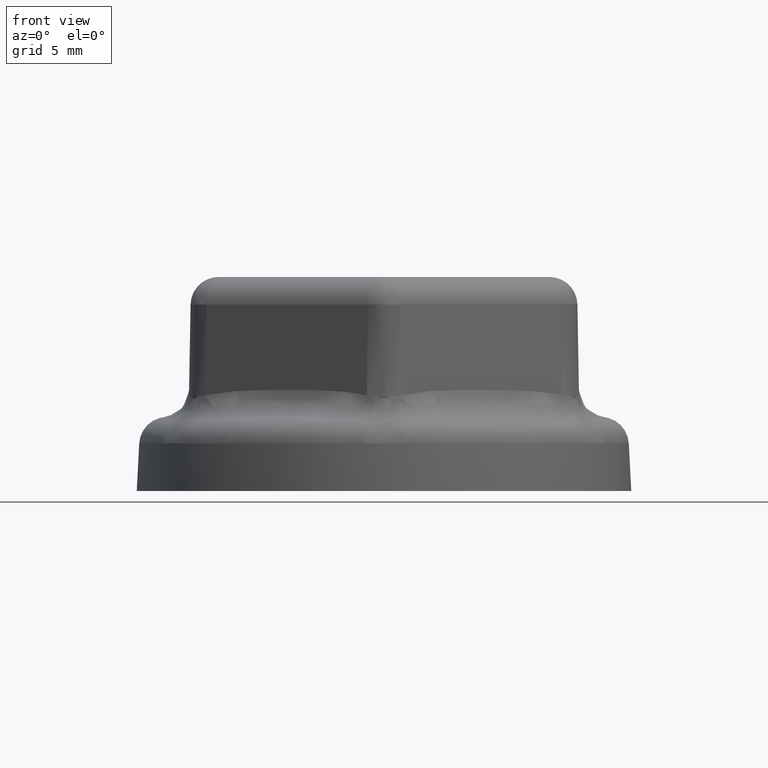
[diagram: clean part render]
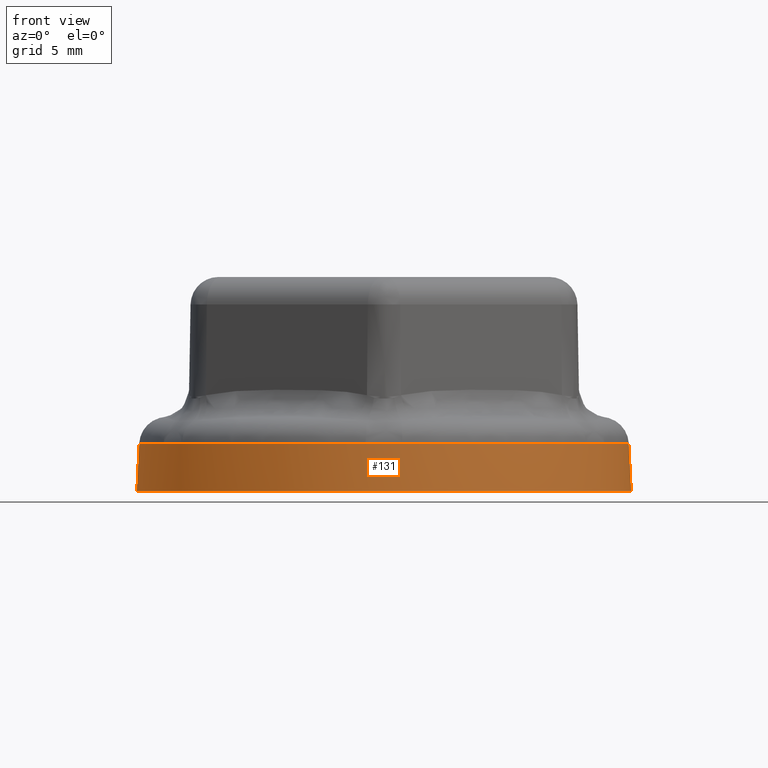
[diagram: same view with one face highlighted and labeled with its STEP entity id]
A machine part, front view. The second image highlights one B-rep face of the part: STEP entity #131.
In plain terms, the highlighted conical surface has half-angle 3 deg.
Its self-contained STEP definition (entity closure, byte-faithful):
#131 = ADVANCED_FACE( '', ( #296, #297 ), #298, .T. );
#296 = FACE_BOUND( '', #2257, .T. );
#297 = FACE_OUTER_BOUND( '', #2258, .T. );
#298 = CONICAL_SURFACE( '', #2259, 17.6729456716340, 0.0523598775598299 );
#2257 = EDGE_LOOP( '', ( #4956, #4957, #4958, #4959, #4960, #4961, #4962, #4963, #4964, #4965, #4966, #4967 ) );
#2258 = EDGE_LOOP( '', ( #4968 ) );
#2259 = AXIS2_PLACEMENT_3D( '', #4969, #4970, #4971 );
#4956 = ORIENTED_EDGE( '', *, *, #5410, .T. );
#4957 = ORIENTED_EDGE( '', *, *, #5414, .T. );
#4958 = ORIENTED_EDGE( '', *, *, #5415, .T. );
#4959 = ORIENTED_EDGE( '', *, *, #5416, .T. );
#4960 = ORIENTED_EDGE( '', *, *, #5417, .T. );
#4961 = ORIENTED_EDGE( '', *, *, #5418, .T. );
#4962 = ORIENTED_EDGE( '', *, *, #5419, .T. );
#4963 = ORIENTED_EDGE( '', *, *, #5420, .T. );
#4964 = ORIENTED_EDGE( '', *, *, #5421, .T. );
#4965 = ORIENTED_EDGE( '', *, *, #5422, .T. );
#4966 = ORIENTED_EDGE( '', *, *, #5406, .T. );
#4967 = ORIENTED_EDGE( '', *, *, #5412, .T. );
#4968 = ORIENTED_EDGE( '', *, *, #5423, .T. );
#4969 = CARTESIAN_POINT( '', ( 0.000000000000000, 0.000000000000000, 0.000000000000000 ) );
#4970 = DIRECTION( '', ( 0.000000000000000, 0.000000000000000, -1.00000000000000 ) );
#4971 = DIRECTION( '', ( 1.00000000000000, 0.000000000000000, 0.000000000000000 ) );
#5406 = EDGE_CURVE( '', #5751, #5749, #5752, .T. );
#5410 = EDGE_CURVE( '', #5757, #5755, #5758, .T. );
#5412 = EDGE_CURVE( '', #5749, #5757, #5760, .T. );
#5414 = EDGE_CURVE( '', #5755, #5761, #5763, .T. );
#5415 = EDGE_CURVE( '', #5761, #5764, #5765, .T. );
#5416 = EDGE_CURVE( '', #5764, #5766, #5767, .T. );
#5417 = EDGE_CURVE( '', #5766, #5768, #5769, .T. );
#5418 = EDGE_CURVE( '', #5768, #5770, #5771, .T. );
#5419 = EDGE_CURVE( '', #5770, #5772, #5773, .T. );
#5420 = EDGE_CURVE( '', #5772, #5774, #5775, .T. );
#5421 = EDGE_CURVE( '', #5774, #5776, #5777, .T. );
#5422 = EDGE_CURVE( '', #5776, #5751, #5778, .T. );
#5423 = EDGE_CURVE( '', #5779, #5779, #5780, .T. );
#5749 = VERTEX_POINT( '', #6880 );
#5751 = VERTEX_POINT( '', #6882 );
#5752 = CIRCLE( '', #6883, 17.4945143775133 );
#5755 = VERTEX_POINT( '', #6921 );
#5757 = VERTEX_POINT( '', #6923 );
#5758 = CIRCLE( '', #6924, 17.4945143775133 );
#5760 = B_SPLINE_CURVE_WITH_KNOTS( '', 3, ( #6926, #6927, #6928, #6929, #6930, #6931, #6932, #6933, #6934, #6935, #6936, #6937, #6938, #6939, #6940, #6941, #6942 ), .UNSPECIFIED., .F., .F., ( 4, 2, 2, 2, 1, 2, 2, 2, 4 ), ( 0.000000000000000, 0.000327581224059132, 0.000655162448118264, 0.000982743672177396, 0.00131032489623653, 0.00163790612029566, 0.00196548734435479, 0.00229306856841392, 0.00262064979247306 ), .UNSPECIFIED. );
#5761 = VERTEX_POINT( '', #6943 );
#5763 = B_SPLINE_CURVE_WITH_KNOTS( '', 3, ( #6945, #6946, #6947, #6948, #6949, #6950, #6951, #6952, #6953, #6954, #6955, #6956, #6957, #6958, #6959, #6960, #6961 ), .UNSPECIFIED., .F., .F., ( 4, 2, 2, 2, 1, 2, 2, 2, 4 ), ( 0.000000000000000, 0.000327581224059172, 0.000655162448118343, 0.000982743672177515, 0.00131032489623669, 0.00163790612029586, 0.00196548734435503, 0.00229306856841420, 0.00262064979247338 ), .UNSPECIFIED. );
#5764 = VERTEX_POINT( '', #6962 );
#5765 = CIRCLE( '', #6963, 17.4945143775133 );
#5766 = VERTEX_POINT( '', #6964 );
#5767 = B_SPLINE_CURVE_WITH_KNOTS( '', 3, ( #6965, #6966, #6967, #6968, #6969, #6970, #6971, #6972, #6973, #6974, #6975, #6976, #6977, #6978, #6979, #6980, #6981 ), .UNSPECIFIED., .F., .F., ( 4, 2, 2, 2, 1, 2, 2, 2, 4 ), ( 0.000000000000000, 0.000327581224059232, 0.000655162448118462, 0.000982743672177691, 0.00131032489623692, 0.00163790612029615, 0.00196548734435538, 0.00229306856841461, 0.00262064979247384 ), .UNSPECIFIED. );
#5768 = VERTEX_POINT( '', #6982 );
#5769 = CIRCLE( '', #6983, 17.4945143775133 );
#5770 = VERTEX_POINT( '', #6984 );
#5771 = B_SPLINE_CURVE_WITH_KNOTS( '', 3, ( #6985, #6986, #6987, #6988, #6989, #6990, #6991, #6992, #6993, #6994, #6995, #6996, #6997, #6998, #6999, #7000, #7001 ), .UNSPECIFIED., .F., .F., ( 4, 2, 2, 2, 1, 2, 2, 2, 4 ), ( 0.000000000000000, 0.000327581224059151, 0.000655162448118302, 0.000982743672177454, 0.00131032489623660, 0.00163790612029576, 0.00196548734435491, 0.00229306856841406, 0.00262064979247321 ), .UNSPECIFIED. );
#5772 = VERTEX_POINT( '', #7002 );
#5773 = CIRCLE( '', #7003, 17.4945143775133 );
#5774 = VERTEX_POINT( '', #7004 );
#5775 = B_SPLINE_CURVE_WITH_KNOTS( '', 3, ( #7005, #7006, #7007, #7008, #7009, #7010, #7011, #7012, #7013, #7014, #7015, #7016, #7017, #7018, #7019, #7020, #7021 ), .UNSPECIFIED., .F., .F., ( 4, 2, 2, 2, 1, 2, 2, 2, 4 ), ( 0.000000000000000, 0.000327581224059315, 0.000655162448118630, 0.000982743672177945, 0.00131032489623726, 0.00163790612029658, 0.00196548734435589, 0.00229306856841521, 0.00262064979247452 ), .UNSPECIFIED. );
#5776 = VERTEX_POINT( '', #7022 );
#5777 = CIRCLE( '', #7023, 17.4945143775133 );
#5778 = B_SPLINE_CURVE_WITH_KNOTS( '', 3, ( #7024, #7025, #7026, #7027, #7028, #7029, #7030, #7031, #7032, #7033, #7034, #7035, #7036, #7037, #7038, #7039, #7040 ), .UNSPECIFIED., .F., .F., ( 4, 2, 2, 2, 1, 2, 2, 2, 4 ), ( 0.000000000000000, 0.000327581224059208, 0.000655162448118414, 0.000982743672177619, 0.00131032489623682, 0.00163790612029603, 0.00196548734435524, 0.00229306856841444, 0.00262064979247365 ), .UNSPECIFIED. );
#5779 = VERTEX_POINT( '', #7041 );
#5780 = CIRCLE( '', #7042, 17.6729456716340 );
#6880 = CARTESIAN_POINT( '', ( -1.31032489623613, 17.4453742284688, 3.40467191248589 ) );
#6882 = CARTESIAN_POINT( '', ( -14.4529748122622, 9.85746176158626, 3.40467191248589 ) );
#6883 = AXIS2_PLACEMENT_3D( '', #8139, #8140, #8141 );
#6921 = CARTESIAN_POINT( '', ( 14.4529748122623, 9.85746176158604, 3.40467191248589 ) );
#6923 = CARTESIAN_POINT( '', ( 1.31032489623693, 17.4453742284687, 3.40467191248589 ) );
#6924 = AXIS2_PLACEMENT_3D( '', #8148, #8149, #8150 );
#6926 = CARTESIAN_POINT( '', ( -1.31032489623613, 17.4453742284688, 3.40467191248589 ) );
#6927 = CARTESIAN_POINT( '', ( -1.20113115488308, 17.4535757881450, 3.40467191248589 ) );
#6928 = CARTESIAN_POINT( '', ( -1.09193741353004, 17.4606866130747, 3.40581113302189 ) );
#6929 = CARTESIAN_POINT( '', ( -0.873549930823948, 17.4728069921034, 3.40899088238006 ) );
#6930 = CARTESIAN_POINT( '', ( -0.764356189470905, 17.4778168271504, 3.41102584739353 ) );
#6931 = CARTESIAN_POINT( '', ( -0.545968706764816, 17.4858022877583, 3.41482043468377 ) );
#6932 = CARTESIAN_POINT( '', ( -0.436774965411772, 17.4887781823218, 3.41657475362219 ) );
#6933 = CARTESIAN_POINT( '', ( -0.218387482705684, 17.4927406323438, 3.41901077912954 ) );
#6934 = CARTESIAN_POINT( '', ( 4.03838204196538E-013, 17.4947140622316, 3.42036790846527 ) );
#6935 = CARTESIAN_POINT( '', ( 0.218387482706492, 17.4927406323438, 3.41901077912960 ) );
#6936 = CARTESIAN_POINT( '', ( 0.436774965412580, 17.4887781823218, 3.41657475362227 ) );
#6937 = CARTESIAN_POINT( '', ( 0.545968706765624, 17.4858022877583, 3.41482043468386 ) );
#6938 = CARTESIAN_POINT( '', ( 0.764356189471712, 17.4778168271504, 3.41102584739360 ) );
#6939 = CARTESIAN_POINT( '', ( 0.873549930824755, 17.4728069921034, 3.40899088238011 ) );
#6940 = CARTESIAN_POINT( '', ( 1.09193741353084, 17.4606866130747, 3.40581113302191 ) );
#6941 = CARTESIAN_POINT( '', ( 1.20113115488389, 17.4535757881449, 3.40467191248589 ) );
#6942 = CARTESIAN_POINT( '', ( 1.31032489623693, 17.4453742284687, 3.40467191248589 ) );
#6943 = CARTESIAN_POINT( '', ( 15.7632997084989, 7.58791246688163, 3.40467191248589 ) );
#6945 = CARTESIAN_POINT( '', ( 14.4529748122623, 9.85746176158604, 3.40467191248589 ) );
#6946 = CARTESIAN_POINT( '', ( 14.5146744419691, 9.76699798747812, 3.40467191248589 ) );
#6947 = CARTESIAN_POINT( '', ( 14.5754294676766, 9.67598884599696, 3.40581113302189 ) );
#6948 = CARTESIAN_POINT( '', ( 14.6951197651720, 9.49291992761929, 3.40899088238005 ) );
#6949 = CARTESIAN_POINT( '', ( 14.7540552802680, 9.40086029119676, 3.41102584739352 ) );
#6950 = CARTESIAN_POINT( '', ( 14.8701646333684, 9.21572391360868, 3.41482043468377 ) );
#6951 = CARTESIAN_POINT( '', ( 14.9273387043359, 9.12264730694443, 3.41657475362219 ) );
#6952 = CARTESIAN_POINT( '', ( 15.0399640280693, 8.93549942406340, 3.41901077912955 ) );
#6953 = CARTESIAN_POINT( '', ( 15.1508668098378, 8.74735703111526, 3.42036790846530 ) );
#6954 = CARTESIAN_POINT( '', ( 15.2583515107754, 8.55724120827933, 3.41901077912963 ) );
#6955 = CARTESIAN_POINT( '', ( 15.3641136697481, 8.36613087537629, 3.41657475362232 ) );
#6956 = CARTESIAN_POINT( '', ( 15.4161333401337, 8.27007837414851, 3.41482043468390 ) );
#6957 = CARTESIAN_POINT( '', ( 15.5184114697393, 8.07695653595252, 3.41102584739364 ) );
#6958 = CARTESIAN_POINT( '', ( 15.5686696959964, 7.97988706448301, 3.40899088238014 ) );
#6959 = CARTESIAN_POINT( '', ( 15.6673668812071, 7.78469776707661, 3.40581113302192 ) );
#6960 = CARTESIAN_POINT( '', ( 15.7158055968526, 7.68657780066574, 3.40467191248589 ) );
#6961 = CARTESIAN_POINT( '', ( 15.7632997084989, 7.58791246688163, 3.40467191248589 ) );
#6962 = CARTESIAN_POINT( '', ( 15.7632997084986, -7.58791246688232, 3.40467191248589 ) );
#6963 = AXIS2_PLACEMENT_3D( '', #8157, #8158, #8159 );
#6964 = CARTESIAN_POINT( '', ( 14.4529748122616, -9.85746176158705, 3.40467191248589 ) );
#6965 = CARTESIAN_POINT( '', ( 15.7632997084986, -7.58791246688232, 3.40467191248589 ) );
#6966 = CARTESIAN_POINT( '', ( 15.7158055968523, -7.68657780066644, 3.40467191248589 ) );
#6967 = CARTESIAN_POINT( '', ( 15.6673668812067, -7.78469776707733, 3.40581113302190 ) );
#6968 = CARTESIAN_POINT( '', ( 15.5686696959960, -7.97988706448376, 3.40899088238009 ) );
#6969 = CARTESIAN_POINT( '', ( 15.5184114697390, -8.07695653595327, 3.41102584739357 ) );
#6970 = CARTESIAN_POINT( '', ( 15.4161333401332, -8.27007837414929, 3.41482043468382 ) );
#6971 = CARTESIAN_POINT( '', ( 15.3641136697477, -8.36613087537709, 3.41657475362224 ) );
#6972 = CARTESIAN_POINT( '', ( 15.2583515107749, -8.55724120828017, 3.41901077912960 ) );
#6973 = CARTESIAN_POINT( '', ( 15.1508668098373, -8.74735703111613, 3.42036790846533 ) );
#6974 = CARTESIAN_POINT( '', ( 15.0399640280688, -8.93549942406429, 3.41901077912964 ) );
#6975 = CARTESIAN_POINT( '', ( 14.9273387043354, -9.12264730694534, 3.41657475362232 ) );
#6976 = CARTESIAN_POINT( '', ( 14.8701646333678, -9.21572391360960, 3.41482043468390 ) );
#6977 = CARTESIAN_POINT( '', ( 14.7540552802674, -9.40086029119771, 3.41102584739363 ) );
#6978 = CARTESIAN_POINT( '', ( 14.6951197651714, -9.49291992762024, 3.40899088238013 ) );
#6979 = CARTESIAN_POINT( '', ( 14.5754294676759, -9.67598884599795, 3.40581113302192 ) );
#6980 = CARTESIAN_POINT( '', ( 14.5146744419684, -9.76699798747912, 3.40467191248589 ) );
#6981 = CARTESIAN_POINT( '', ( 14.4529748122616, -9.85746176158705, 3.40467191248589 ) );
#6982 = CARTESIAN_POINT( '', ( 1.31032489623626, -17.4453742284688, 3.40467191248589 ) );
#6983 = AXIS2_PLACEMENT_3D( '', #8160, #8161, #8162 );
#6984 = CARTESIAN_POINT( '', ( -1.31032489623695, -17.4453742284687, 3.40467191248589 ) );
#6985 = CARTESIAN_POINT( '', ( 1.31032489623626, -17.4453742284688, 3.40467191248589 ) );
#6986 = CARTESIAN_POINT( '', ( 1.20113115488321, -17.4535757881450, 3.40467191248589 ) );
#6987 = CARTESIAN_POINT( '', ( 1.09193741353015, -17.4606866130747, 3.40581113302190 ) );
#6988 = CARTESIAN_POINT( '', ( 0.873549930824053, -17.4728069921034, 3.40899088238007 ) );
#6989 = CARTESIAN_POINT( '', ( 0.764356189471003, -17.4778168271504, 3.41102584739354 ) );
#6990 = CARTESIAN_POINT( '', ( 0.545968706764902, -17.4858022877583, 3.41482043468378 ) );
#6991 = CARTESIAN_POINT( '', ( 0.436774965411851, -17.4887781823218, 3.41657475362220 ) );
#6992 = CARTESIAN_POINT( '', ( 0.218387482705750, -17.4927406323438, 3.41901077912956 ) );
#6993 = CARTESIAN_POINT( '', ( -3.50170196658506E-013, -17.4947140622316, 3.42036790846528 ) );
#6994 = CARTESIAN_POINT( '', ( -0.218387482706451, -17.4927406323438, 3.41901077912960 ) );
#6995 = CARTESIAN_POINT( '', ( -0.436774965412551, -17.4887781823218, 3.41657475362228 ) );
#6996 = CARTESIAN_POINT( '', ( -0.545968706765602, -17.4858022877583, 3.41482043468386 ) );
#6997 = CARTESIAN_POINT( '', ( -0.764356189471703, -17.4778168271504, 3.41102584739360 ) );
#6998 = CARTESIAN_POINT( '', ( -0.873549930824753, -17.4728069921034, 3.40899088238011 ) );
#6999 = CARTESIAN_POINT( '', ( -1.09193741353085, -17.4606866130747, 3.40581113302191 ) );
#7000 = CARTESIAN_POINT( '', ( -1.20113115488390, -17.4535757881449, 3.40467191248589 ) );
#7001 = CARTESIAN_POINT( '', ( -1.31032489623695, -17.4453742284687, 3.40467191248589 ) );
#7002 = CARTESIAN_POINT( '', ( -14.4529748122617, -9.85746176158699, 3.40467191248589 ) );
#7003 = AXIS2_PLACEMENT_3D( '', #8163, #8164, #8165 );
#7004 = CARTESIAN_POINT( '', ( -15.7632997084989, -7.58791246688163, 3.40467191248589 ) );
#7005 = CARTESIAN_POINT( '', ( -14.4529748122617, -9.85746176158699, 3.40467191248589 ) );
#7006 = CARTESIAN_POINT( '', ( -14.5146744419685, -9.76699798747903, 3.40467191248589 ) );
#7007 = CARTESIAN_POINT( '', ( -14.5754294676760, -9.67598884599783, 3.40581113302192 ) );
#7008 = CARTESIAN_POINT( '', ( -14.6951197651715, -9.49291992762008, 3.40899088238013 ) );
#7009 = CARTESIAN_POINT( '', ( -14.7540552802675, -9.40086029119752, 3.41102584739362 ) );
#7010 = CARTESIAN_POINT( '', ( -14.8701646333680, -9.21572391360936, 3.41482043468389 ) );
#7011 = CARTESIAN_POINT( '', ( -14.9273387043355, -9.12264730694508, 3.41657475362231 ) );
#7012 = CARTESIAN_POINT( '', ( -15.0399640280690, -8.93549942406398, 3.41901077912966 ) );
#7013 = CARTESIAN_POINT( '', ( -15.1508668098375, -8.74735703111576, 3.42036790846538 ) );
#7014 = CARTESIAN_POINT( '', ( -15.2583515107752, -8.55724120827975, 3.41901077912967 ) );
#7015 = CARTESIAN_POINT( '', ( -15.3641136697480, -8.36613087537663, 3.41657475362233 ) );
#7016 = CARTESIAN_POINT( '', ( -15.4161333401335, -8.27007837414880, 3.41482043468391 ) );
#7017 = CARTESIAN_POINT( '', ( -15.5184114697392, -8.07695653595273, 3.41102584739363 ) );
#7018 = CARTESIAN_POINT( '', ( -15.5686696959963, -7.97988706448318, 3.40899088238014 ) );
#7019 = CARTESIAN_POINT( '', ( -15.6673668812071, -7.78469776707670, 3.40581113302192 ) );
#7020 = CARTESIAN_POINT( '', ( -15.7158055968526, -7.68657780066579, 3.40467191248589 ) );
#7021 = CARTESIAN_POINT( '', ( -15.7632997084989, -7.58791246688163, 3.40467191248589 ) );
#7022 = CARTESIAN_POINT( '', ( -15.7632997084989, 7.58791246688162, 3.40467191248589 ) );
#7023 = AXIS2_PLACEMENT_3D( '', #8166, #8167, #8168 );
#7024 = CARTESIAN_POINT( '', ( -15.7632997084989, 7.58791246688162, 3.40467191248589 ) );
#7025 = CARTESIAN_POINT( '', ( -15.7158055968526, 7.68657780066574, 3.40467191248589 ) );
#7026 = CARTESIAN_POINT( '', ( -15.6673668812071, 7.78469776707663, 3.40581113302192 ) );
#7027 = CARTESIAN_POINT( '', ( -15.5686696959964, 7.97988706448304, 3.40899088238014 ) );
#7028 = CARTESIAN_POINT( '', ( -15.5184114697393, 8.07695653595256, 3.41102584739364 ) );
#7029 = CARTESIAN_POINT( '', ( -15.4161333401336, 8.27007837414857, 3.41482043468390 ) );
#7030 = CARTESIAN_POINT( '', ( -15.3641136697481, 8.36613087537636, 3.41657475362232 ) );
#7031 = CARTESIAN_POINT( '', ( -15.2583515107753, 8.55724120827943, 3.41901077912964 ) );
#7032 = CARTESIAN_POINT( '', ( -15.1508668098377, 8.74735703111537, 3.42036790846531 ) );
#7033 = CARTESIAN_POINT( '', ( -15.0399640280692, 8.93549942406353, 3.41901077912958 ) );
#7034 = CARTESIAN_POINT( '', ( -14.9273387043359, 9.12264730694458, 3.41657475362222 ) );
#7035 = CARTESIAN_POINT( '', ( -14.8701646333683, 9.21572391360883, 3.41482043468380 ) );
#7036 = CARTESIAN_POINT( '', ( -14.7540552802679, 9.40086029119693, 3.41102584739354 ) );
#7037 = CARTESIAN_POINT( '', ( -14.6951197651719, 9.49291992761946, 3.40899088238007 ) );
#7038 = CARTESIAN_POINT( '', ( -14.5754294676765, 9.67598884599716, 3.40581113302190 ) );
#7039 = CARTESIAN_POINT( '', ( -14.5146744419689, 9.76699798747833, 3.40467191248589 ) );
#7040 = CARTESIAN_POINT( '', ( -14.4529748122622, 9.85746176158626, 3.40467191248589 ) );
#7041 = CARTESIAN_POINT( '', ( 17.6729456716340, 0.000000000000000, 0.000000000000000 ) );
#7042 = AXIS2_PLACEMENT_3D( '', #8169, #8170, #8171 );
#8139 = CARTESIAN_POINT( '', ( 0.000000000000000, 0.000000000000000, 3.40467191248589 ) );
#8140 = DIRECTION( '', ( 0.000000000000000, 0.000000000000000, -1.00000000000000 ) );
#8141 = DIRECTION( '', ( -1.00000000000000, 0.000000000000000, 0.000000000000000 ) );
#8148 = CARTESIAN_POINT( '', ( 0.000000000000000, 0.000000000000000, 3.40467191248589 ) );
#8149 = DIRECTION( '', ( 0.000000000000000, 0.000000000000000, -1.00000000000000 ) );
#8150 = DIRECTION( '', ( -1.00000000000000, 0.000000000000000, 0.000000000000000 ) );
#8157 = CARTESIAN_POINT( '', ( 0.000000000000000, 0.000000000000000, 3.40467191248589 ) );
#8158 = DIRECTION( '', ( 0.000000000000000, 0.000000000000000, -1.00000000000000 ) );
#8159 = DIRECTION( '', ( -1.00000000000000, 0.000000000000000, 0.000000000000000 ) );
#8160 = CARTESIAN_POINT( '', ( 0.000000000000000, 0.000000000000000, 3.40467191248589 ) );
#8161 = DIRECTION( '', ( 0.000000000000000, 0.000000000000000, -1.00000000000000 ) );
#8162 = DIRECTION( '', ( -1.00000000000000, 0.000000000000000, 0.000000000000000 ) );
#8163 = CARTESIAN_POINT( '', ( 0.000000000000000, 0.000000000000000, 3.40467191248589 ) );
#8164 = DIRECTION( '', ( 0.000000000000000, 0.000000000000000, -1.00000000000000 ) );
#8165 = DIRECTION( '', ( -1.00000000000000, 0.000000000000000, 0.000000000000000 ) );
#8166 = CARTESIAN_POINT( '', ( 0.000000000000000, 0.000000000000000, 3.40467191248589 ) );
#8167 = DIRECTION( '', ( 0.000000000000000, 0.000000000000000, -1.00000000000000 ) );
#8168 = DIRECTION( '', ( -1.00000000000000, 0.000000000000000, 0.000000000000000 ) );
#8169 = CARTESIAN_POINT( '', ( 0.000000000000000, 0.000000000000000, 0.000000000000000 ) );
#8170 = DIRECTION( '', ( 0.000000000000000, 0.000000000000000, 1.00000000000000 ) );
#8171 = DIRECTION( '', ( 1.00000000000000, 0.000000000000000, 0.000000000000000 ) );